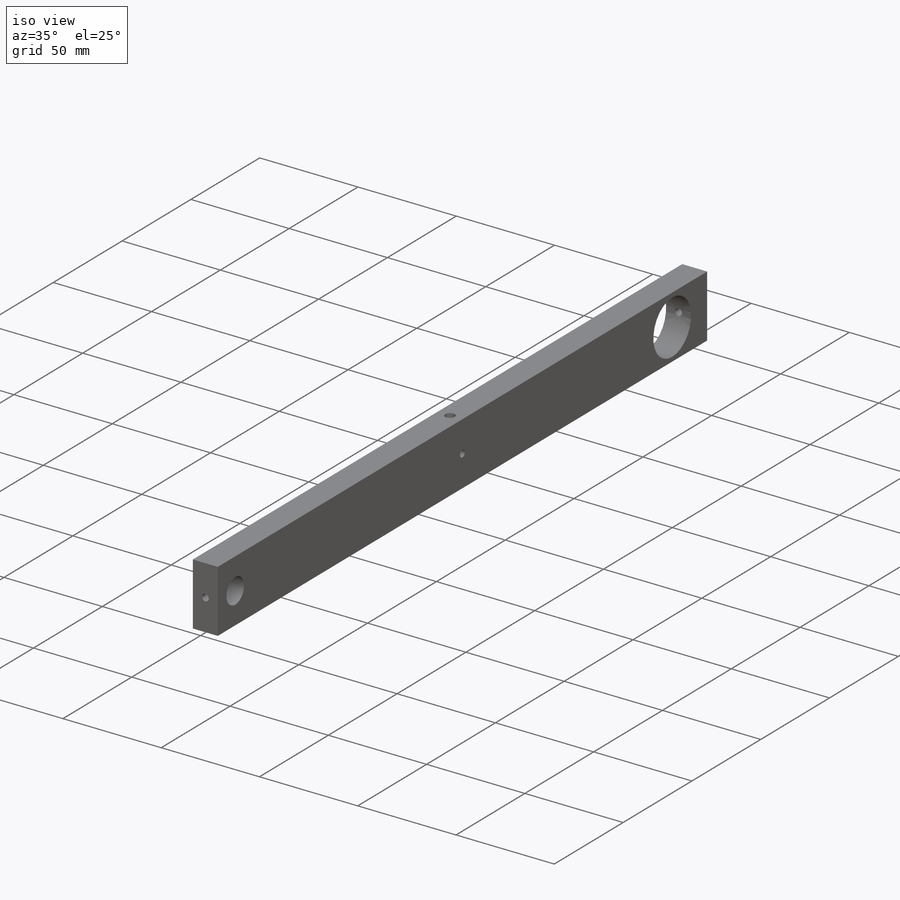
[diagram: iso view]
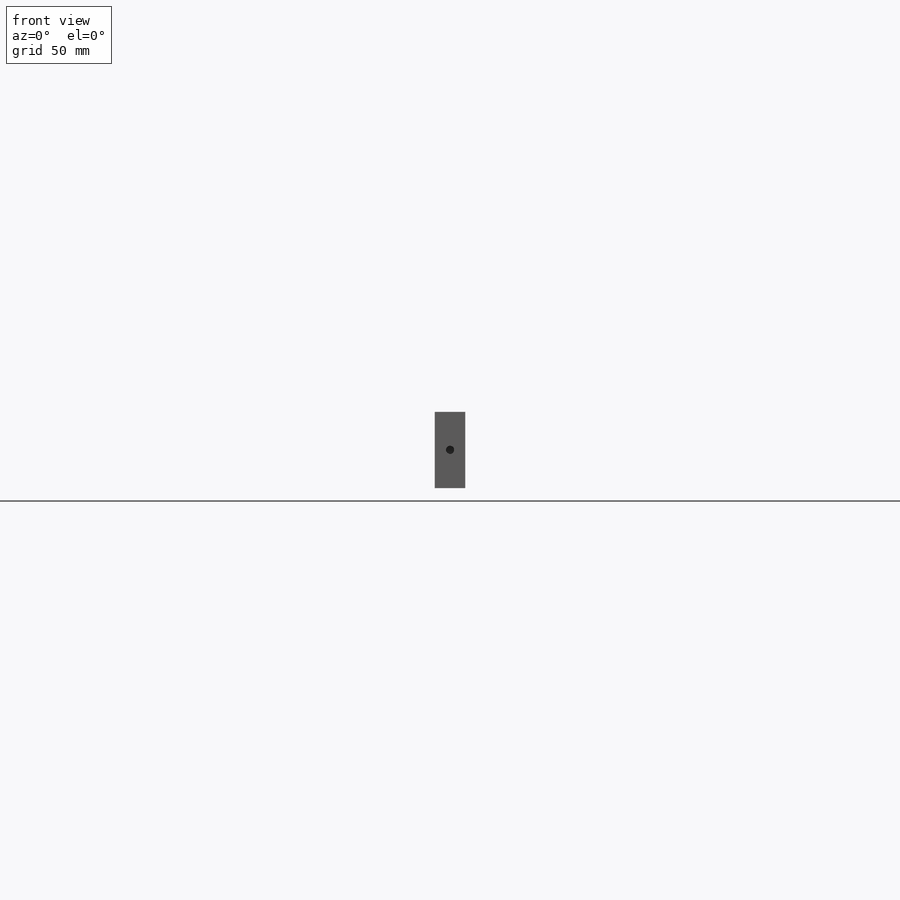
[diagram: front view]
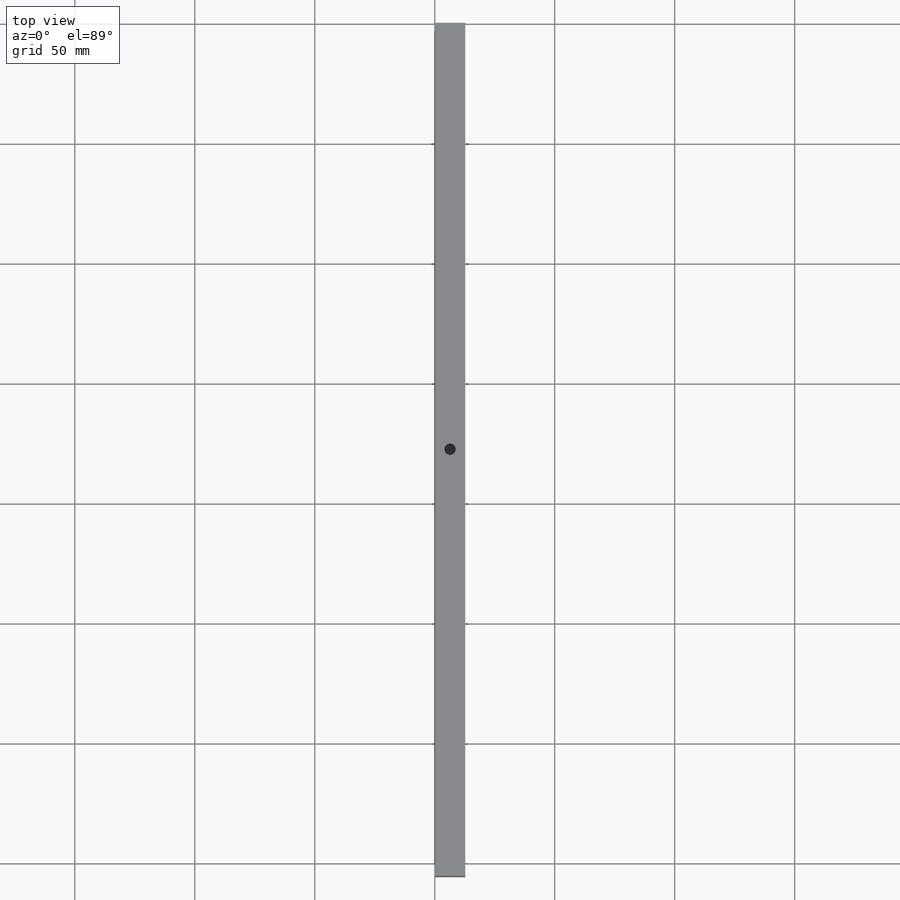
[diagram: top view]
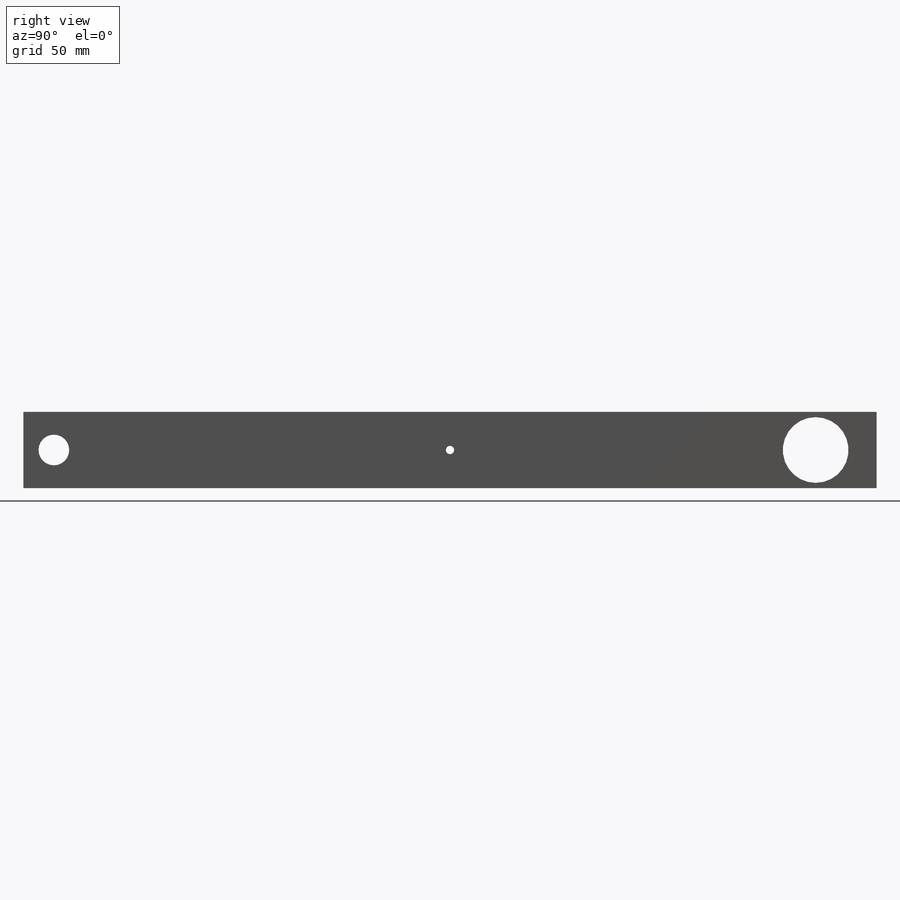
[diagram: right view]
SOLIDWORKS PART (.sldprt)
format: sldprt  version: not decoded by parser v0  size: 181,760 bytes
history: native  units: mm
features: sketch x6, cut_extrude x5, material x1, extrude x1 (+15 scaffold rows collapsed)
feature tree (28):
  scaffold x15  (default folders/planes/origin — collapsed)
  material  "Material <not specified>"
  sketch  "Sketch1"  dims[D1=31.75mm D2=12.7mm]
  extrude  "Boss-Extrude1"  Depth=355.6mm
  sketch  "Sketch2"  dims[D1=27.3812mm D3=12.7762mm D2=25.4mm D4=317.5mm]
  cut_extrude  "Cut-Extrude1"  [1 undecoded]
  sketch  "Sketch3"  dims[D1=3.4544mm]
  cut_extrude  "Cut-Extrude2"  [1 undecoded]
  sketch  "Sketch4"  dims[D1=3.4544mm]
  cut_extrude  "Cut-Extrude3"  [1 undecoded]
  sketch  "Sketch6"  dims[D1=4.8006mm]
  cut_extrude  "Cut-Extrude4"  Depth=25.4mm
  sketch  "Sketch8"  dims[D1=3.4544mm]
  cut_extrude  "Cut-Extrude5"  [1 undecoded]
decode coverage: 8 of 12 modeling features carry decoded parameters
note: 4 parameter values undecoded
summary: no parameter record found for 4 features
note: suppression state not decoded; provenance and decode notes live in map.json
